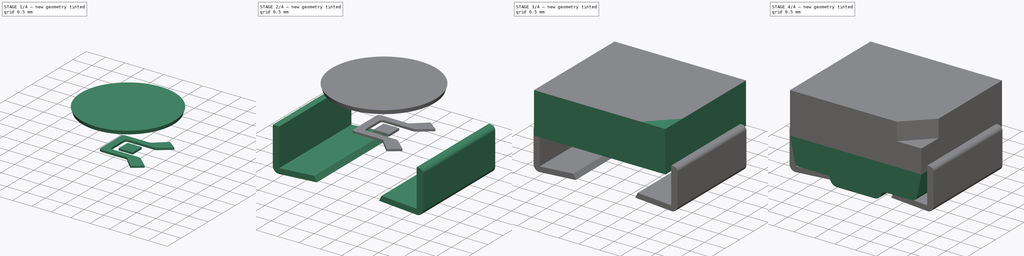
[diagram: build sequence overview — one tinted view per stage of 4, left to right]
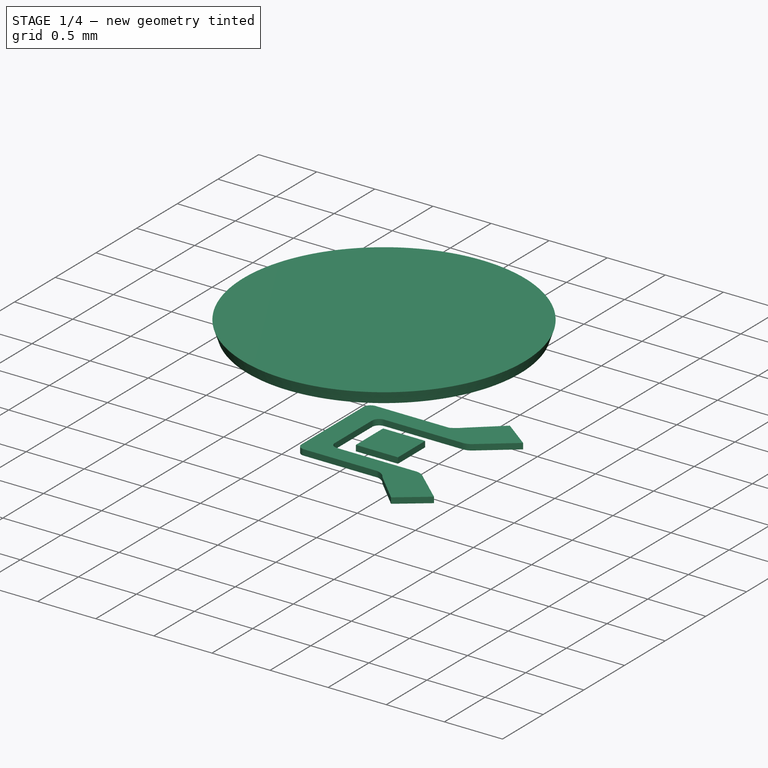
[diagram: stage 1 of 4 — iso view after this stage's code; geometry added in this stage tinted green]
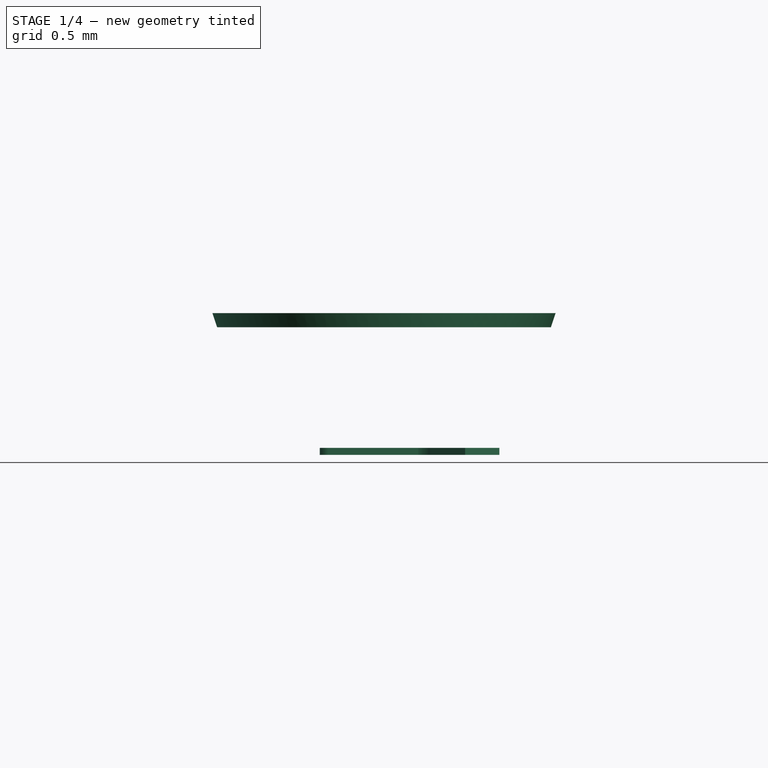
[diagram: stage 1 of 4 — front view after this stage's code; geometry added in this stage tinted green]
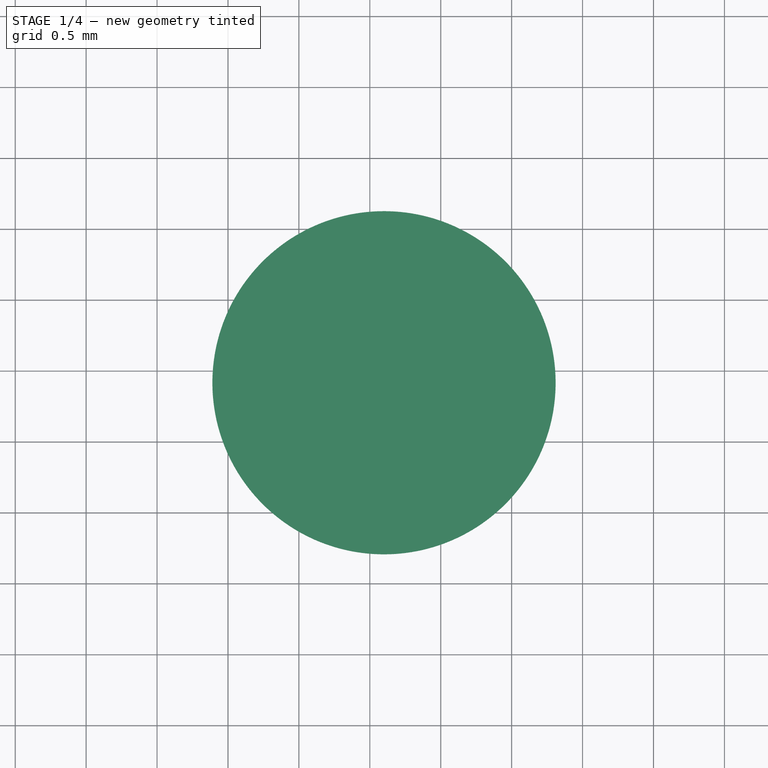
[diagram: stage 1 of 4 — top view after this stage's code; geometry added in this stage tinted green]
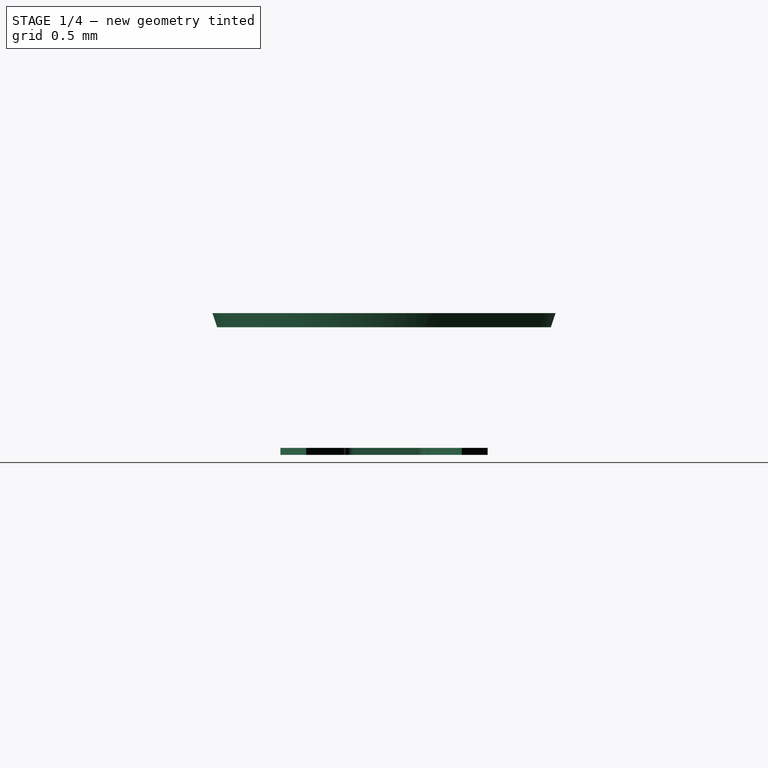
[diagram: stage 1 of 4 — right view after this stage's code; geometry added in this stage tinted green]
FCSTD DOCUMENT  (FreeCAD 0.16R6712 (Git))
Label: LED_3528
License: All rights reserved
LicenseURL: http://en.wikipedia.org/wiki/All_rights_reserved
objects: Sketcher::SketchObject×5, PartDesign::Pad×5, Part::Box×2, Part::Cone×2, Part::Cut×2, Part::Fillet×2
note: 23 computed .brp shape members not serialized (recipe doc carries the construction recipe); baked Part::Feature solids carry a one-line shape summary decoded from their .brp

FEATURE [Part::Cone] Cone001
  Angle = 360
  Height = 0.1
  Placement = pos=(1.6,1.4,1.78) rot=(0,0,1;0rad)
  Radius1 = 1.1765
  Radius2 = 1.21
FEATURE [Part::Box] Box001  label="Cube001"
  Height = 0.05
  Length = 0.3621
  Placement = pos=(1.4664,1.245,0.88) rot=(0,0,1;0rad)
  Width = 0.3347
FEATURE [Sketcher::SketchObject] Sketch004
  Placement = pos=(0,0,0.88) rot=(0,0,1;0rad)
  sketch-geometry (20):
    g0: LineSegment StartX=1.207 StartY=0.974 StartZ=0 EndX=1.841 EndY=0.974 EndZ=0
    g1: LineSegment StartX=1.207 StartY=1.856 StartZ=0 EndX=1.841 EndY=1.856 EndZ=0
    g2: LineSegment StartX=1.147 StartY=1.035 StartZ=0 EndX=1.147 EndY=1.796 EndZ=0
    g3: ArcOfCircle CenterX=1.207 CenterY=1.796 CenterZ=0 NormalX=0 NormalY=0 NormalZ=1 Radius=0.06 StartAngle=1.5708 EndAngle=3.14159
    g4: ArcOfCircle CenterX=1.20801 CenterY=1.035 CenterZ=0 NormalX=0 NormalY=0 NormalZ=1 Radius=0.0610083 StartAngle=3.14159 EndAngle=4.69586
    g5: LineSegment StartX=1.388 StartY=1.126 StartZ=0 EndX=2.052 EndY=1.126 EndZ=0
    g6: LineSegment StartX=1.388 StartY=1.704 StartZ=0 EndX=2.052 EndY=1.704 EndZ=0
    g7: LineSegment StartX=1.327 StartY=1.643 StartZ=0 EndX=1.327 EndY=1.187 EndZ=0
    g8: ArcOfCircle CenterX=1.388 CenterY=1.643 CenterZ=0 NormalX=0 NormalY=0 NormalZ=1 Radius=0.061 StartAngle=1.5708 EndAngle=3.14159
    g9: ArcOfCircle CenterX=1.388 CenterY=1.187 CenterZ=0 NormalX=0 NormalY=0 NormalZ=1 Radius=0.061 StartAngle=3.14159 EndAngle=4.71239
    g10: LineSegment StartX=1.92678 StartY=0.913 StartZ=0 EndX=2.172 EndY=0.6695 EndZ=0
    g11: LineSegment StartX=2.1422 StartY=1.0956 StartZ=0 EndX=2.4138 EndY=0.8522 EndZ=0
    g12: LineSegment StartX=2.1422 StartY=1.7348 StartZ=0 EndX=2.4138 EndY=1.9478 EndZ=0
    g13: LineSegment StartX=1.92678 StartY=1.917 StartZ=0 EndX=2.172 EndY=2.1304 EndZ=0
    g14: LineSegment StartX=2.172 StartY=2.1304 StartZ=0 EndX=2.4138 EndY=1.9478 EndZ=0
    g15: LineSegment StartX=2.172 StartY=0.6695 StartZ=0 EndX=2.4138 EndY=0.8522 EndZ=0
    g16: ArcOfCircle CenterX=1.72188 CenterY=2.11432 CenterZ=0 NormalX=0 NormalY=0 NormalZ=1 Radius=0.284461 StartAngle=5.14446 EndAngle=5.51662
    g17: ArcOfCircle CenterX=2.06173 CenterY=1.00585 CenterZ=0 NormalX=0 NormalY=0 NormalZ=1 Radius=0.12054 StartAngle=0.839843 EndAngle=1.6516
    g18: ArcOfCircle CenterX=2.06173 CenterY=1.82298 CenterZ=0 NormalX=0 NormalY=0 NormalZ=1 Radius=0.119381 StartAngle=4.63079 EndAngle=5.45208
    g19: ArcOfCircle CenterX=1.81895 CenterY=0.852179 CenterZ=0 NormalX=0 NormalY=0 NormalZ=1 Radius=0.123801 StartAngle=0.513561 EndAngle=1.39173
  constraints (68):
    c: Horizontal(g1)
    c: Horizontal(g0)
    c: DistanceX(g0) = 1.207
    c: DistanceX(g1) = 1.207
    c: DistanceX(g0) = 1.841
    c: DistanceX(g1) = 1.841
    c: DistanceY(g0) = 0.974
    c: DistanceY(g1) = 1.856
    c: Vertical(g2)
    c: DistanceX(g2) = 1.147
    c: DistanceY(g2) = 1.796
    c: DistanceY(g2) = 1.035
    c: Coincident(g2,g3)
    c: Coincident(g1,g3)
    c: Coincident(g2,g4)
    c: Coincident(g0,g4)
    c: Vertical(g7)
    c: Horizontal(g6)
    c: Horizontal(g5)
    c: DistanceY(g5) = 1.126
    c: DistanceY(g6) = 1.704
    c: DistanceY(g7) = 1.643
    c: DistanceY(g7) = 1.187
    c: DistanceX(g7) = 1.327
    c: DistanceX(g6) = 1.388
    c: DistanceX(g5) = 1.388
    c: Coincident(g7,g8)
    c: Coincident(g6,g8)
    c: Coincident(g5,g9)
    c: Coincident(g7,g9)
    c: DistanceX(g5) = 2.052
    c: DistanceX(g6) = 2.052
    c: Coincident(g13,g14)
    c: Coincident(g12,g14)
    c: Coincident(g11,g15)
    c: Coincident(g10,g15)
    c: DistanceY(g10) = 0.913
    c: DistanceY(g13) = 1.917
    c: DistanceX(g10) = 1.92678
    c: Coincident(g1,g16)
    c: Coincident(g13,g16)
    c: DistanceX(g10) = 2.172
    c: DistanceX(g13) = 2.172
    c: DistanceY(g4) = 1.035
    c: DistanceY(g3) = 1.796
    c: DistanceY(g8) = 1.643
    c: DistanceY(g9) = 1.187
    c: DistanceX(g11) = 2.4138
    c: DistanceX(g12) = 2.4138
    c: DistanceY(g11) = 0.8522
    c: DistanceY(g12) = 1.9478
    c: DistanceY(g11) = 1.0956
    c: DistanceY(g12) = 1.7348
    c: DistanceX(g11) = 2.1422
    c: DistanceX(g12) = 2.1422
    c: Coincident(g5,g17)
    c: Coincident(g11,g17)
    c: Coincident(g6,g18)
    c: Coincident(g12,g18)
    c: DistanceX(g17) = 2.06173
    c: DistanceX(g18) = 2.06173
    c: DistanceY(g10) = 0.6695
    c: DistanceY(g13) = 2.1304
    c: DistanceX(g13) = 1.92678
    c: DistanceY(g16) = 2.11432
    c: Coincident(g0,g19)
    c: Coincident(g10,g19)
    c: DistanceY(g19) = 0.852179
FEATURE [PartDesign::Pad] Pad004
  Length = 0.05
  Length2 = 100
  Placement = pos=(0,0,0.88) rot=(0,0,1;0rad)
  Sketch = -> Sketch004
  Type = 0
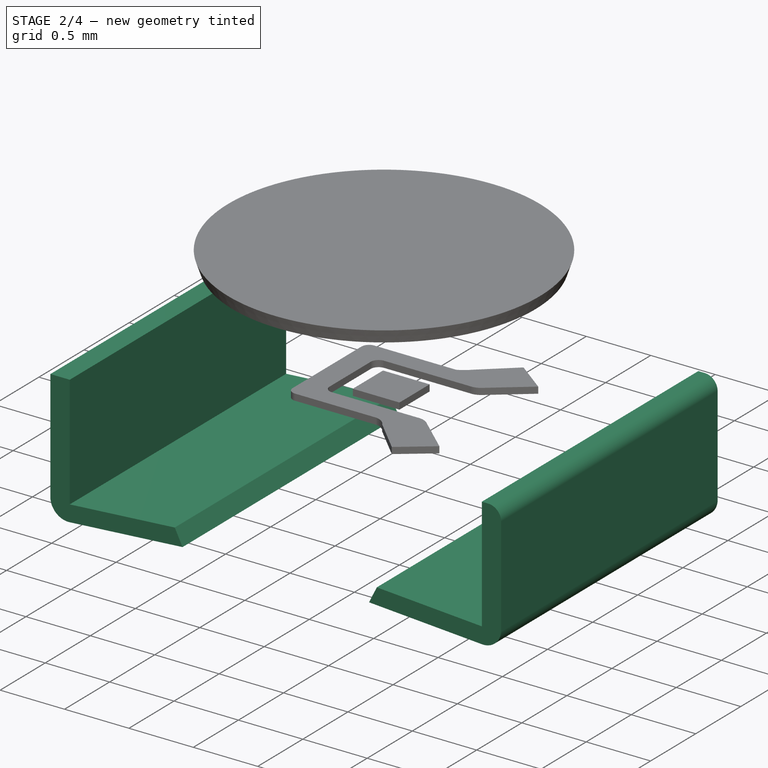
[diagram: stage 2 of 4 — iso view after this stage's code; geometry added in this stage tinted green]
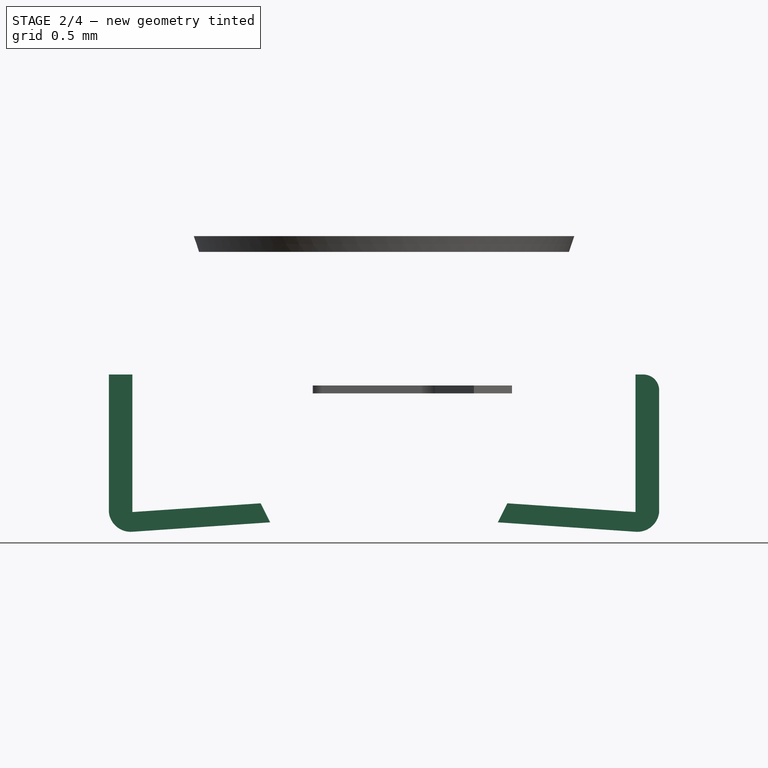
[diagram: stage 2 of 4 — front view after this stage's code; geometry added in this stage tinted green]
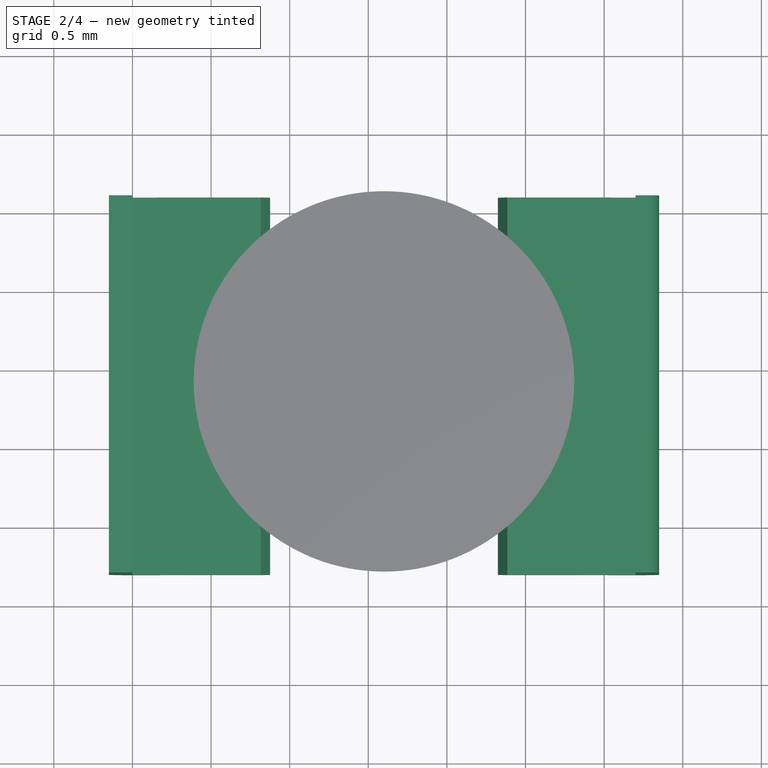
[diagram: stage 2 of 4 — top view after this stage's code; geometry added in this stage tinted green]
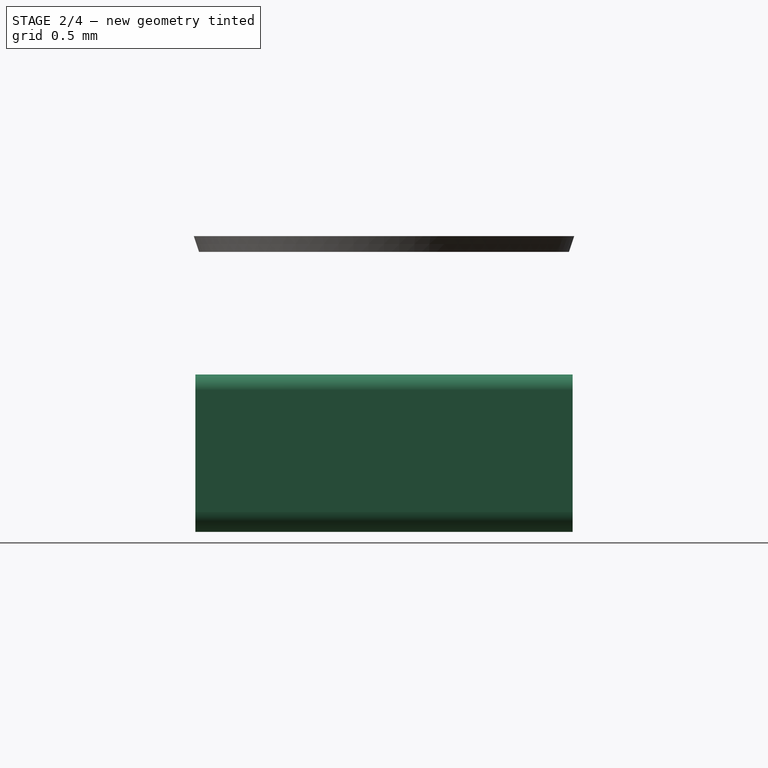
[diagram: stage 2 of 4 — right view after this stage's code; geometry added in this stage tinted green]
FEATURE [Sketcher::SketchObject] Sketch002
  Placement = pos=(0,2.6,0) rot=(1,0,0;1.5708rad)
  sketch-geometry (7):
    g0: LineSegment StartX=-0.15 StartY=0.1253 StartZ=0 EndX=-0.15 EndY=1 EndZ=0
    g1: LineSegment StartX=-0.15 StartY=1 StartZ=0 EndX=0 EndY=1 EndZ=0
    g2: LineSegment StartX=0 StartY=1 StartZ=0 EndX=0 EndY=0.1253 EndZ=0
    g3: LineSegment StartX=0 StartY=0.1253 StartZ=0 EndX=0.8155 EndY=0.181 EndZ=0
    g4: LineSegment StartX=0 StartY=0 StartZ=0 EndX=0.8759 EndY=0.06 EndZ=0
    g5: LineSegment StartX=0.8759 StartY=0.06 StartZ=0 EndX=0.8155 EndY=0.181 EndZ=0
    g6: ArcOfCircle CenterX=-0.010914 CenterY=0.139369 CenterZ=0 NormalX=0 NormalY=0 NormalZ=1 Radius=0.139796 StartAngle=3.2424 EndAngle=4.79054
  constraints (22):
    c: Coincident(g0,g1)
    c: Coincident(g1,g2)
    c: Horizontal(g1)
    c: Vertical(g2)
    c: Vertical(g0)
    c: DistanceX(g0) = -0.15
    c: DistanceX(g1) = 0
    c: DistanceY(g0) = 0.1253
    c: DistanceY(g2) = 0.1253
    c: Coincident(g3,g5)
    c: Coincident(g4,g5)
    c: Coincident(g2,g3)
    c: DistanceX(g3) = 0.8155
    c: DistanceX(g4) = 0.8759
    c: DistanceY(g4) = 0.06
    c: DistanceY(g3) = 0.181
    c: DistanceY(g4) = 0
    c: Coincident(g0,g6)
    c: Coincident(g4,g6)
    c: Coincident(g4,g-1)
    c: DistanceX(g6) = -0.010914
    c: DistanceY(g0) = 1
FEATURE [PartDesign::Pad] Pad002
  Length = 2.4
  Length2 = 100
  Placement = pos=(0,2.6,0) rot=(1,0,0;1.5708rad)
  Sketch = -> Sketch002
  Type = 0
FEATURE [Sketcher::SketchObject] Sketch003
  Placement = pos=(3.2,2.6,0) rot=(1,0,0;1.5708rad)
  sketch-geometry (7):
    g0: LineSegment StartX=0.15 StartY=0.1253 StartZ=0 EndX=0.15 EndY=1 EndZ=0
    g1: LineSegment StartX=0.15 StartY=1 StartZ=0 EndX=0 EndY=1 EndZ=0
    g2: LineSegment StartX=0 StartY=1 StartZ=0 EndX=0 EndY=0.1253 EndZ=0
    g3: LineSegment StartX=0 StartY=0.1253 StartZ=0 EndX=-0.8155 EndY=0.181 EndZ=0
    g4: LineSegment StartX=5e-12 StartY=0 StartZ=0 EndX=-0.8759 EndY=0.06 EndZ=0
    g5: LineSegment StartX=-0.8759 StartY=0.06 StartZ=0 EndX=-0.8155 EndY=0.181 EndZ=0
    g6: ArcOfCircle CenterX=0.010914 CenterY=0.139369 CenterZ=0 NormalX=0 NormalY=0 NormalZ=1 Radius=0.139796 StartAngle=4.63424 EndAngle=6.18237
  constraints (22):
    c: Coincident(g0,g1)
    c: Coincident(g1,g2)
    c: Horizontal(g1)
    c: Vertical(g2)
    c: Vertical(g0)
    c: DistanceX(g0) = 0.15
    c: DistanceX(g1) = 0
    c: DistanceY(g0) = 0.1253
    c: DistanceY(g2) = 0.1253
    c: Coincident(g3,g5)
    c: Coincident(g4,g5)
    c: Coincident(g2,g3)
    c: DistanceX(g3) = -0.8155
    c: DistanceX(g4) = -0.8759
    c: DistanceY(g4) = 0.06
    c: DistanceY(g3) = 0.181
    c: DistanceY(g4) = 0
    c: Coincident(g4,g-1)
    c: DistanceY(g0) = 1
    c: Coincident(g4,g6)
    c: Coincident(g0,g6)
    c: DistanceX(g6) = 0.010914
FEATURE [PartDesign::Pad] Pad003
  Length = 2.4
  Length2 = 100
  Placement = pos=(3.2,2.6,0) rot=(1,0,0;1.5708rad)
  Sketch = -> Sketch003
  Type = 0
FEATURE [Part::Fillet] Fillet001
  Base = -> Pad003
  Edges = 1 edges r=0.1: [Edge5]
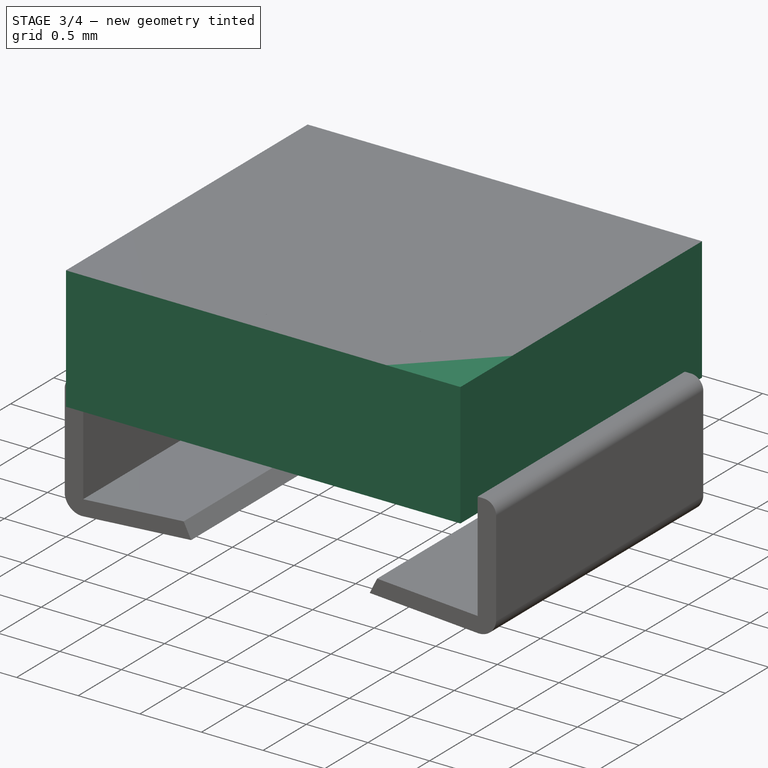
[diagram: stage 3 of 4 — iso view after this stage's code; geometry added in this stage tinted green]
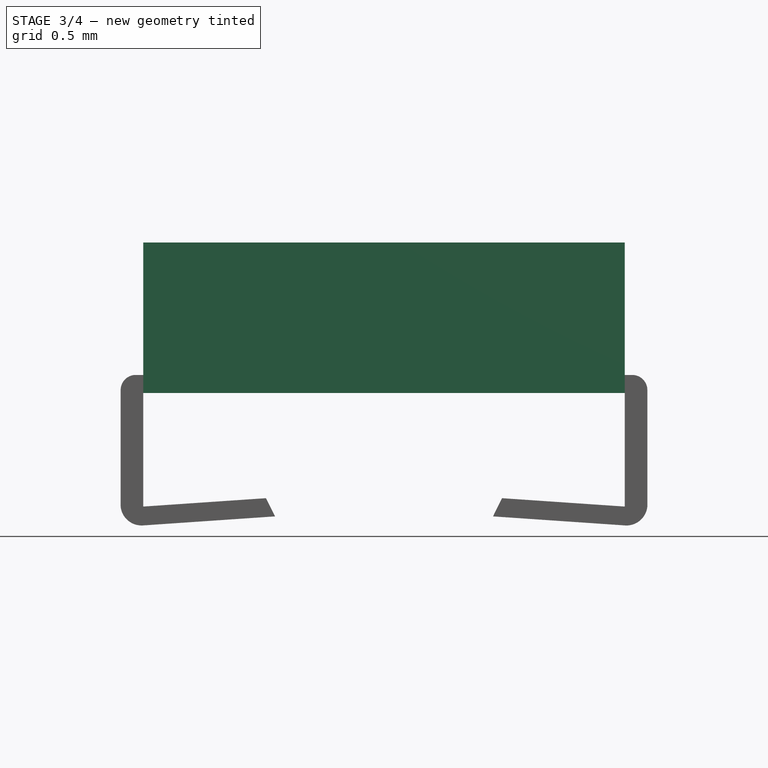
[diagram: stage 3 of 4 — front view after this stage's code; geometry added in this stage tinted green]
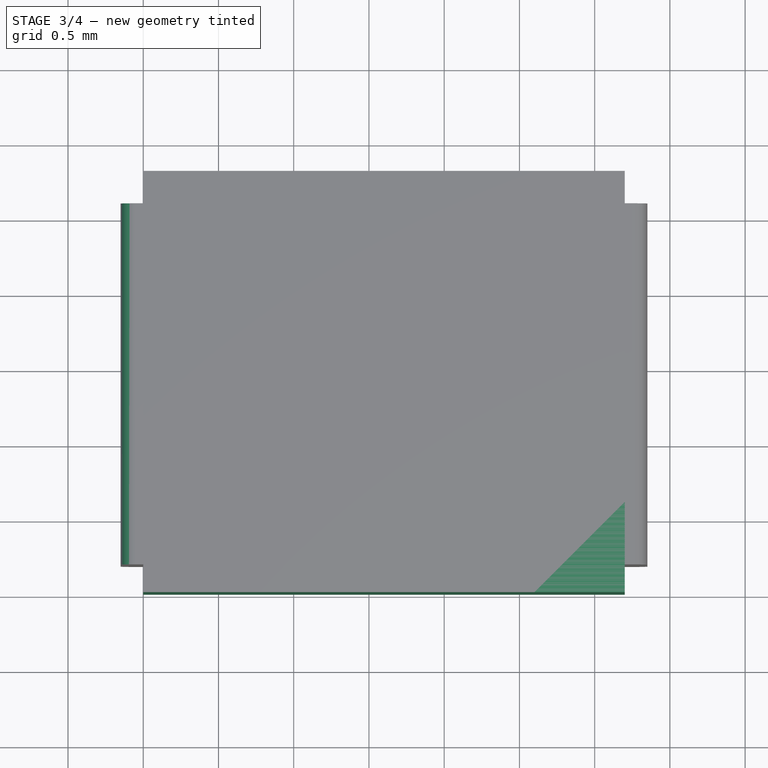
[diagram: stage 3 of 4 — top view after this stage's code; geometry added in this stage tinted green]
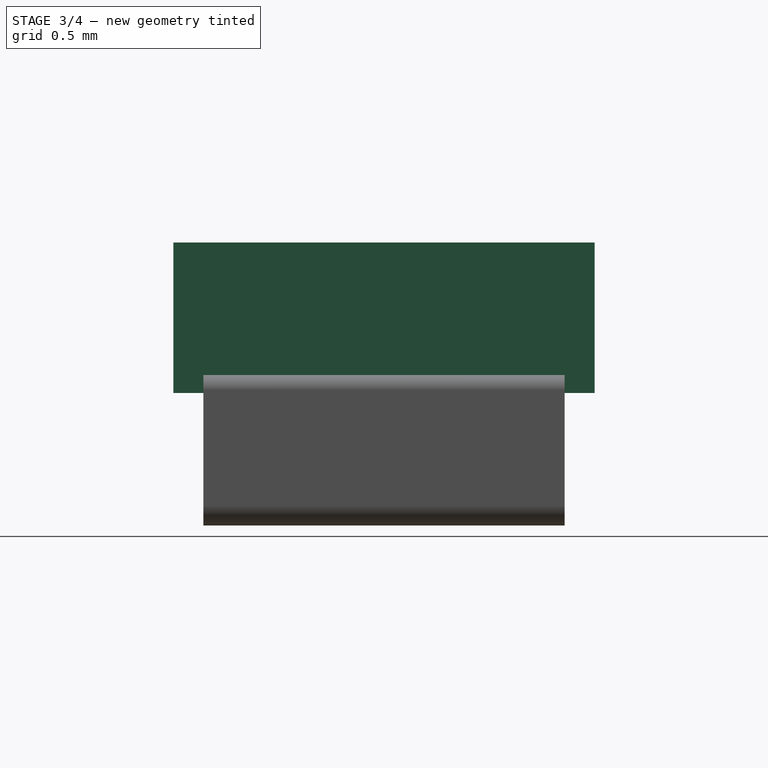
[diagram: stage 3 of 4 — right view after this stage's code; geometry added in this stage tinted green]
FEATURE [Part::Box] Box  label="Cube"
  Height = 1
  Length = 3.2
  Placement = pos=(0,0,0.88) rot=(0,0,1;0rad)
  Width = 2.8
FEATURE [Part::Cone] Cone
  Angle = 360
  Height = 1
  Placement = pos=(1.6,1.4,0.88) rot=(0,0,1;0rad)
  Radius1 = 0.875
  Radius2 = 1.21
FEATURE [Sketcher::SketchObject] Sketch001
  Placement = pos=(2.6,0,1.45) rot=(0,0,1;0rad)
  sketch-geometry (3):
    g0: LineSegment StartX=0 StartY=0 StartZ=0 EndX=0.6 EndY=0 EndZ=0
    g1: LineSegment StartX=0.6 StartY=0 StartZ=0 EndX=0.6 EndY=0.6 EndZ=0
    g2: LineSegment StartX=0 StartY=0 StartZ=0 EndX=0.6 EndY=0.6 EndZ=0
  constraints (9):
    c: Coincident(g0,g1)
    c: Horizontal(g0)
    c: Vertical(g1)
    c: DistanceX(g0) = 0
    c: DistanceY(g0) = 0
    c: DistanceX(g0) = 0.6
    c: DistanceY(g1) = 0.6
    c: Coincident(g1,g2)
    c: Coincident(g0,g2)
FEATURE [PartDesign::Pad] Pad001
  Length = 0.43
  Length2 = 100
  Placement = pos=(2.6,0,1.45) rot=(0,0,1;0rad)
  Sketch = -> Sketch001
  Type = 0
FEATURE [Part::Fillet] Fillet
  Base = -> Pad002
  Edges = 1 edges r=0.1: [Edge2]
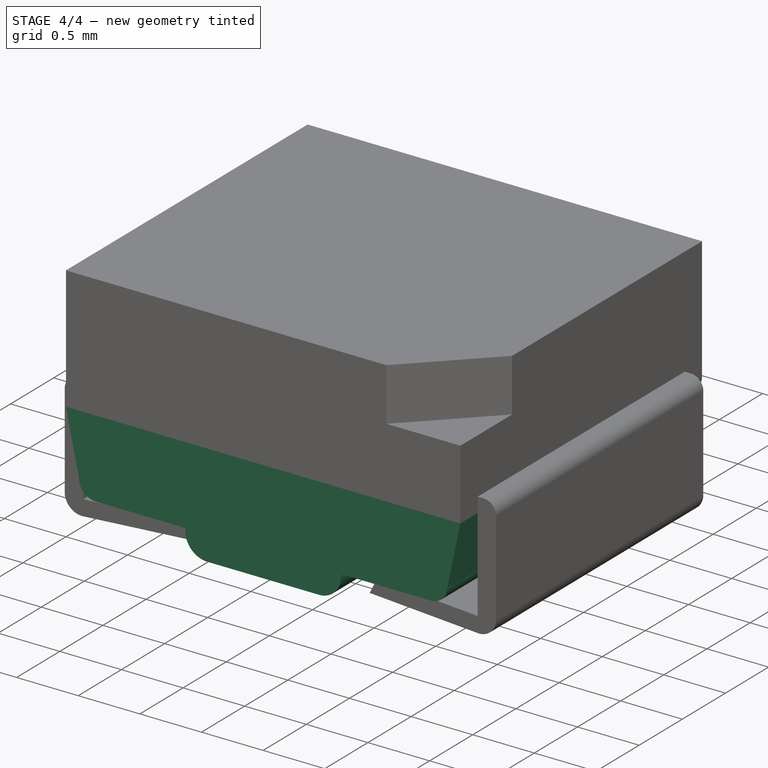
[diagram: stage 4 of 4 — iso view after this stage's code; geometry added in this stage tinted green]
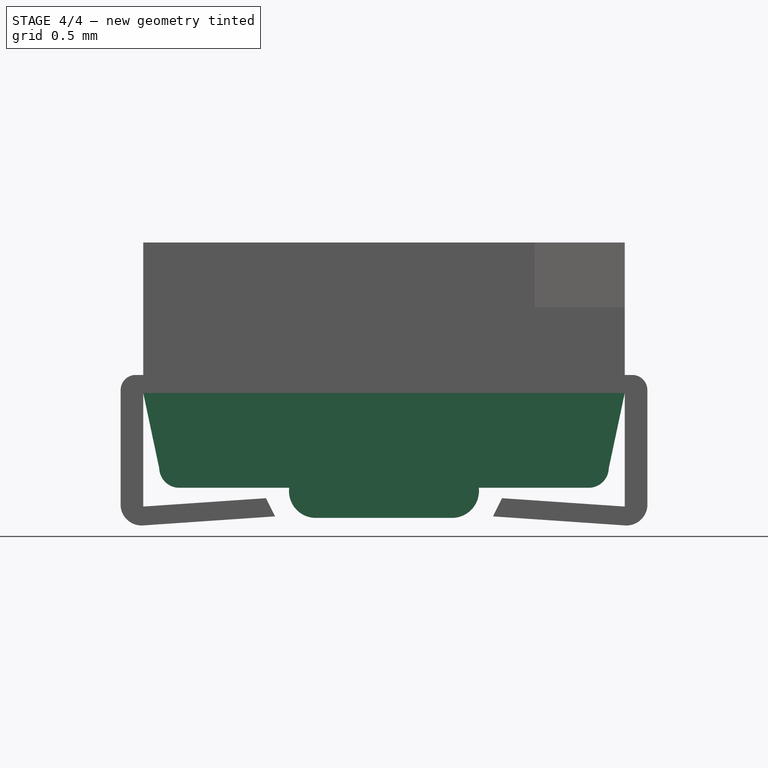
[diagram: stage 4 of 4 — front view after this stage's code; geometry added in this stage tinted green]
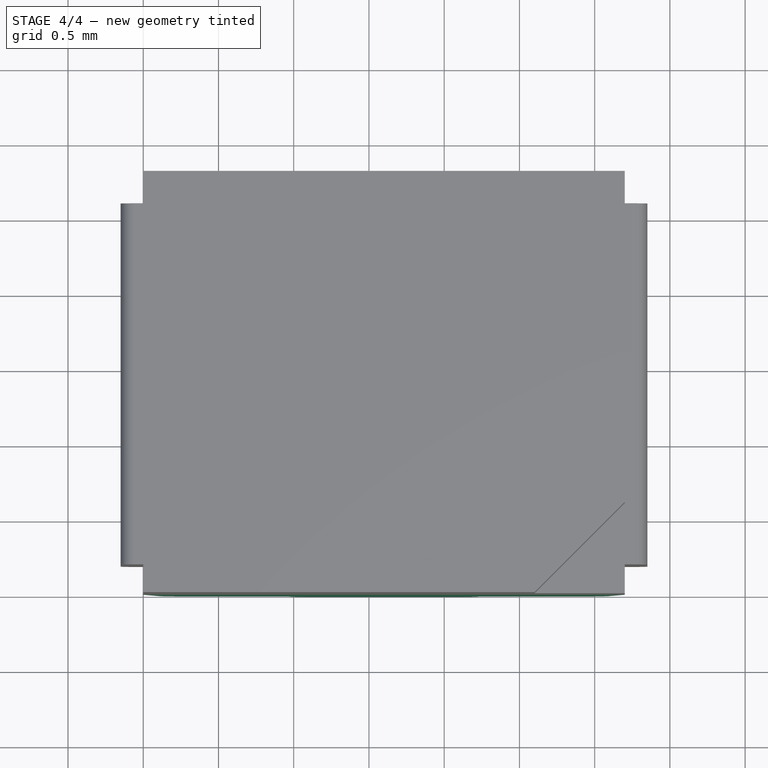
[diagram: stage 4 of 4 — top view after this stage's code; geometry added in this stage tinted green]
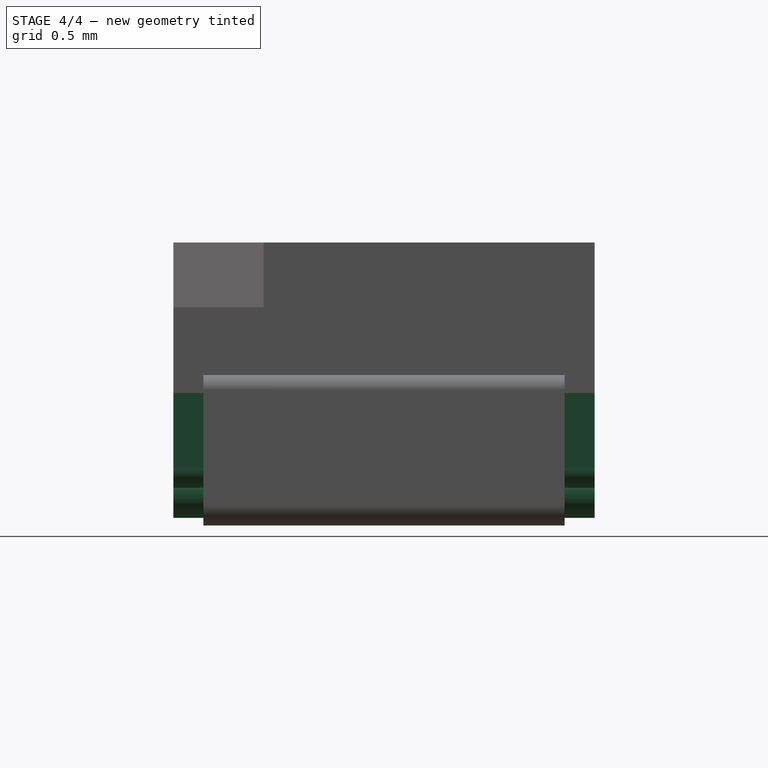
[diagram: stage 4 of 4 — right view after this stage's code; geometry added in this stage tinted green]
FEATURE [Sketcher::SketchObject] Sketch
  Placement = pos=(0,2.8,0) rot=(1,0,0;1.5708rad)
  sketch-geometry (10):
    g0: LineSegment StartX=0 StartY=0.88 StartZ=0 EndX=3.2 EndY=0.88 EndZ=0
    g1: LineSegment StartX=0 StartY=0.88 StartZ=0 EndX=0.106278 EndY=0.38 EndZ=0
    g2: LineSegment StartX=3.2 StartY=0.88 StartZ=0 EndX=3.09372 EndY=0.38 EndZ=0
    g3: LineSegment StartX=0.24 StartY=0.25 StartZ=0 EndX=0.97 EndY=0.25 EndZ=0
    g4: LineSegment StartX=2.23 StartY=0.25 StartZ=0 EndX=2.96 EndY=0.25 EndZ=0
    g5: LineSegment StartX=1.14655 StartY=0.05 StartZ=0 EndX=2.0517 EndY=0.05 EndZ=0
    g6: ArcOfCircle CenterX=0.24 CenterY=0.383775 CenterZ=0 NormalX=0 NormalY=0 NormalZ=1 Radius=0.133775 StartAngle=3.16982 EndAngle=4.71239
    g7: ArcOfCircle CenterX=2.96 CenterY=0.383775 CenterZ=0 NormalX=0 NormalY=0 NormalZ=1 Radius=0.133775 StartAngle=4.71239 EndAngle=6.25496
    g8: ArcOfCircle CenterX=1.14655 CenterY=0.227925 CenterZ=0 NormalX=0 NormalY=0 NormalZ=1 Radius=0.177925 StartAngle=3.0172 EndAngle=4.71239
    g9: ArcOfCircle CenterX=2.0517 CenterY=0.229477 CenterZ=0 NormalX=0 NormalY=0 NormalZ=1 Radius=0.179477 StartAngle=4.71239 EndAngle=6.39778
  constraints (34):
    c: Horizontal(g0)
    c: DistanceY(g0) = 0.88
    c: DistanceX(g0) = 0
    c: DistanceX(g0) = 3.2
    c: Coincident(g0,g1)
    c: Angle(g1) = -1.36136
    c: Coincident(g0,g2)
    c: Angle(g2) = -1.78024
    c: DistanceY(g2) = 0.38
    c: DistanceY(g1) = 0.38
    c: Horizontal(g3)
    c: Horizontal(g4)
    c: DistanceY(g3) = 0.25
    c: DistanceY(g4) = 0.25
    c: DistanceX(g3) = 0.24
    c: DistanceX(g3) = 0.97
    c: DistanceX(g4) = 2.23
    c: DistanceX(g4) = 2.96
    c: Horizontal(g5)
    c: DistanceX(g5) = 1.14655
    c: DistanceX(g5) = 2.0517
    c: DistanceY(g5) = 0.05
    c: Coincident(g4,g7)
    c: Coincident(g2,g7)
    c: Coincident(g1,g6)
    c: Coincident(g3,g6)
    c: DistanceX(g6) = 0.24
    c: DistanceX(g7) = 2.96
    c: Coincident(g3,g8)
    c: Coincident(g5,g8)
    c: Coincident(g4,g9)
    c: Coincident(g5,g9)
    c: DistanceX(g8) = 1.14655
    c: DistanceX(g9) = 2.0517
FEATURE [PartDesign::Pad] Pad
  Length = 2.8
  Length2 = 100
  Placement = pos=(0,2.8,0) rot=(1,0,0;1.5708rad)
  Sketch = -> Sketch
  Type = 0
FEATURE [Part::Cut] Cut
  Base = -> Box
  Tool = -> Cone
FEATURE [Part::Cut] Cut001
  Base = -> Cut
  Tool = -> Pad001
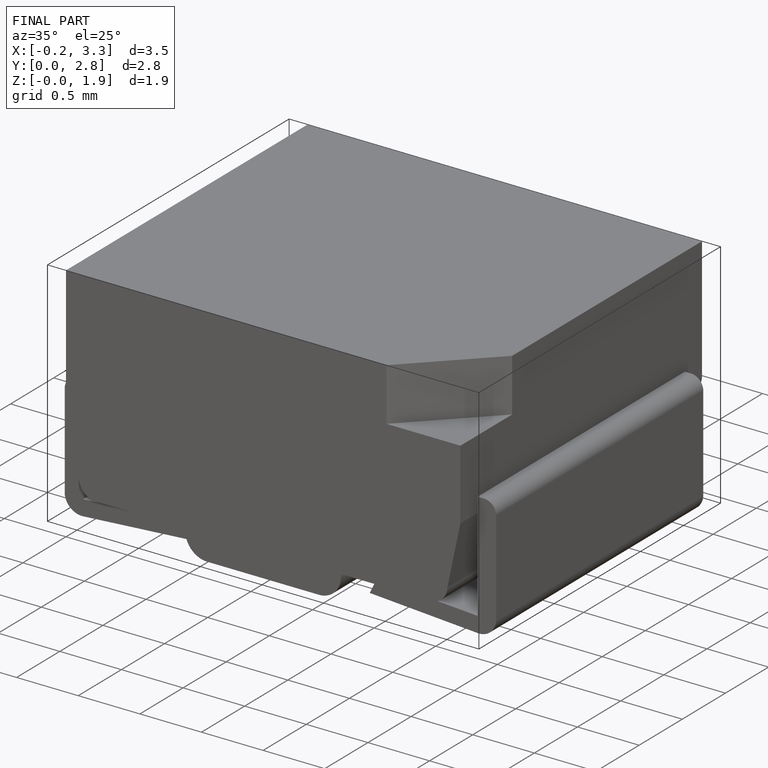
[diagram: finished part — iso view with bounding-box wireframe]
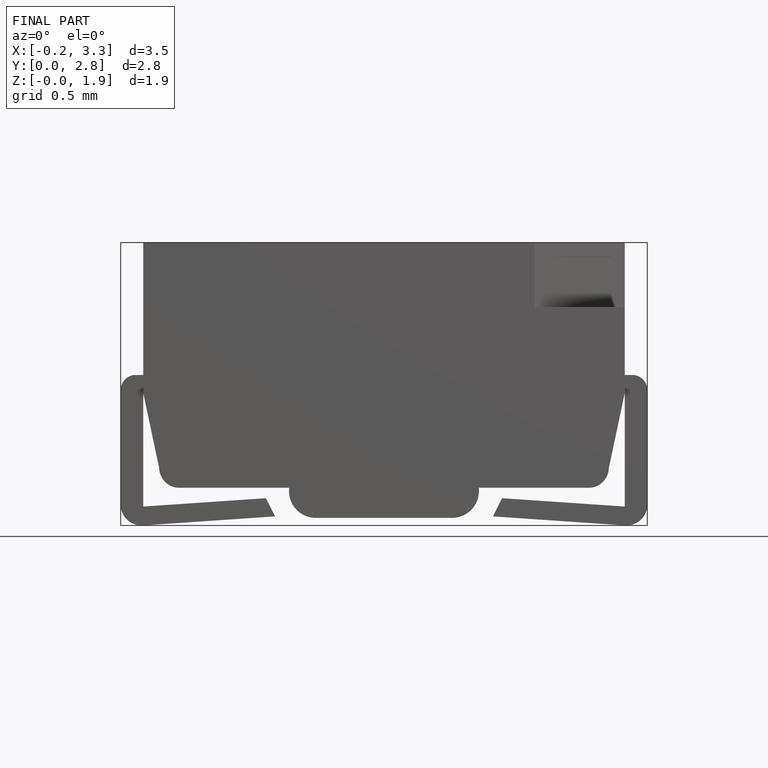
[diagram: finished part — front view with bounding-box wireframe]
